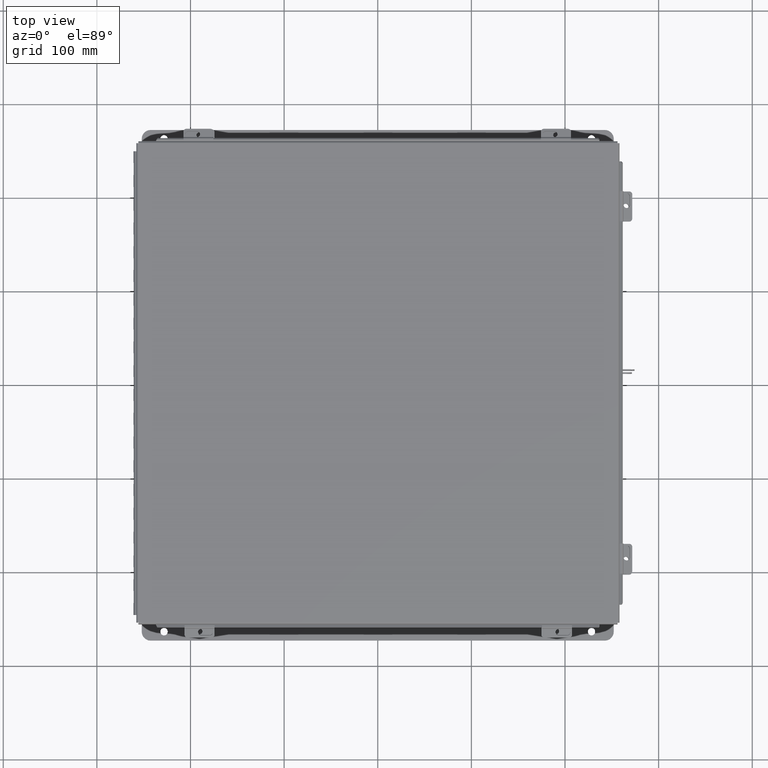
[diagram: clean part render]
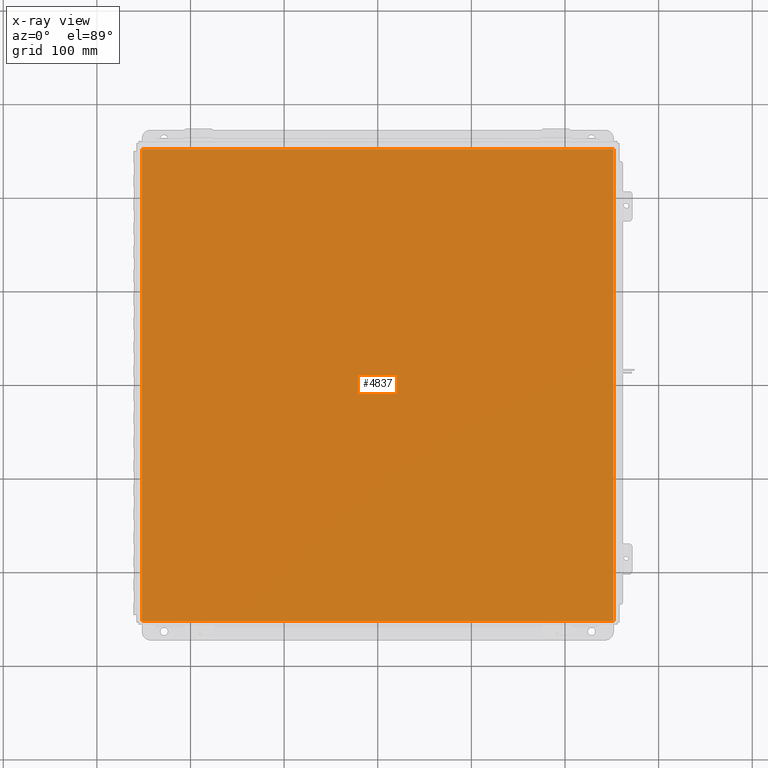
[diagram: x-ray — body ghosted, one internal face saturated and labeled with its STEP entity id]
A machine part, top view, then the same camera in x-ray: the body is ghosted and one INTERNAL B-rep face — a face not visible from any outside direction — is saturated and labeled: STEP entity #4837.
In plain terms, the highlighted planar face has unit normal (0, 0, -1).
Its self-contained STEP definition (entity closure, byte-faithful):
#354 = DIRECTION ( 'NONE',  ( 1.000000000000000000, 0.0000000000000000000, 0.0000000000000000000 ) ) ;
#631 = VECTOR ( 'NONE', #354, 39.37007874015748100 ) ;
#837 = VECTOR ( 'NONE', #15328, 39.37007874015748100 ) ;
#849 = CARTESIAN_POINT ( 'NONE',  ( -9.912299999999998300, -9.925299999999992900, 4.268512490100411300E-017 ) ) ;
#1164 = LINE ( 'NONE', #20305, #631 ) ;
#1511 = VERTEX_POINT ( 'NONE', #5392 ) ;
#1532 = VERTEX_POINT ( 'NONE', #13501 ) ;
#2809 = VECTOR ( 'NONE', #6838, 39.37007874015748100 ) ;
#3898 = FACE_OUTER_BOUND ( 'NONE', #6786, .T. ) ;
#4800 = PLANE ( 'NONE',  #8456 ) ;
#4837 = ADVANCED_FACE ( 'NONE', ( #3898 ), #4800, .F. ) ;
#4888 = EDGE_CURVE ( 'NONE', #17192, #1532, #16082, .T. ) ;
#5392 = CARTESIAN_POINT ( 'NONE',  ( 9.912300000000001900, -9.925299999999998200, 4.268512490100411300E-017 ) ) ;
#5395 = LINE ( 'NONE', #13494, #837 ) ;
#5430 = EDGE_CURVE ( 'NONE', #20571, #1511, #1164, .T. ) ;
#6208 = CARTESIAN_POINT ( 'NONE',  ( -9.912299999999998300, -9.925299999999998200, 4.268512490100411300E-017 ) ) ;
#6786 = EDGE_LOOP ( 'NONE', ( #8922, #20200, #12823, #10888 ) ) ;
#6838 = DIRECTION ( 'NONE',  ( -1.000000000000000000, -0.0000000000000000000, -0.0000000000000000000 ) ) ;
#6910 = DIRECTION ( 'NONE',  ( 0.0000000000000000000, 0.0000000000000000000, -1.000000000000000000 ) ) ;
#8346 = EDGE_CURVE ( 'NONE', #20571, #1532, #13088, .T. ) ;
#8422 = VECTOR ( 'NONE', #11525, 39.37007874015748100 ) ;
#8456 = AXIS2_PLACEMENT_3D ( 'NONE', #17093, #6910, #15431 ) ;
#8922 = ORIENTED_EDGE ( 'NONE', *, *, #22419, .F. ) ;
#10888 = ORIENTED_EDGE ( 'NONE', *, *, #5430, .T. ) ;
#11525 = DIRECTION ( 'NONE',  ( -0.0000000000000000000, 1.000000000000000000, -0.0000000000000000000 ) ) ;
#12823 = ORIENTED_EDGE ( 'NONE', *, *, #8346, .F. ) ;
#13088 = LINE ( 'NONE', #6208, #8422 ) ;
#13494 = CARTESIAN_POINT ( 'NONE',  ( 9.912300000000001900, 9.925300000000001800, 4.268512490100411300E-017 ) ) ;
#13501 = CARTESIAN_POINT ( 'NONE',  ( -9.912299999999998300, 9.925300000000001800, 4.268512490100411300E-017 ) ) ;
#15328 = DIRECTION ( 'NONE',  ( -0.0000000000000000000, -1.000000000000000000, -0.0000000000000000000 ) ) ;
#15431 = DIRECTION ( 'NONE',  ( -1.000000000000000000, 0.0000000000000000000, -0.0000000000000000000 ) ) ;
#16082 = LINE ( 'NONE', #19165, #2809 ) ;
#17093 = CARTESIAN_POINT ( 'NONE',  ( 0.0000000000000000000, 0.0000000000000000000, 0.0000000000000000000 ) ) ;
#17192 = VERTEX_POINT ( 'NONE', #17528 ) ;
#17528 = CARTESIAN_POINT ( 'NONE',  ( 9.912300000000001900, 9.925299999999998200, 4.268512490100411300E-017 ) ) ;
#19165 = CARTESIAN_POINT ( 'NONE',  ( -9.999999999999998200, 9.925300000000001800, 0.0000000000000000000 ) ) ;
#20200 = ORIENTED_EDGE ( 'NONE', *, *, #4888, .T. ) ;
#20305 = CARTESIAN_POINT ( 'NONE',  ( -9.999999999999998200, -9.925299999999998200, 0.0000000000000000000 ) ) ;
#20571 = VERTEX_POINT ( 'NONE', #849 ) ;
#22419 = EDGE_CURVE ( 'NONE', #17192, #1511, #5395, .T. ) ;